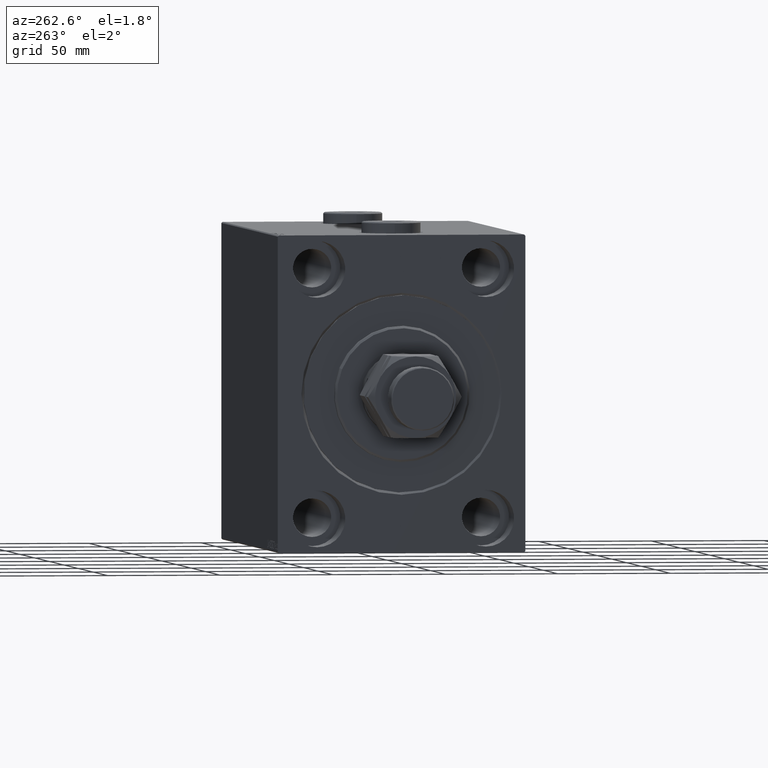
[diagram: clean part render]
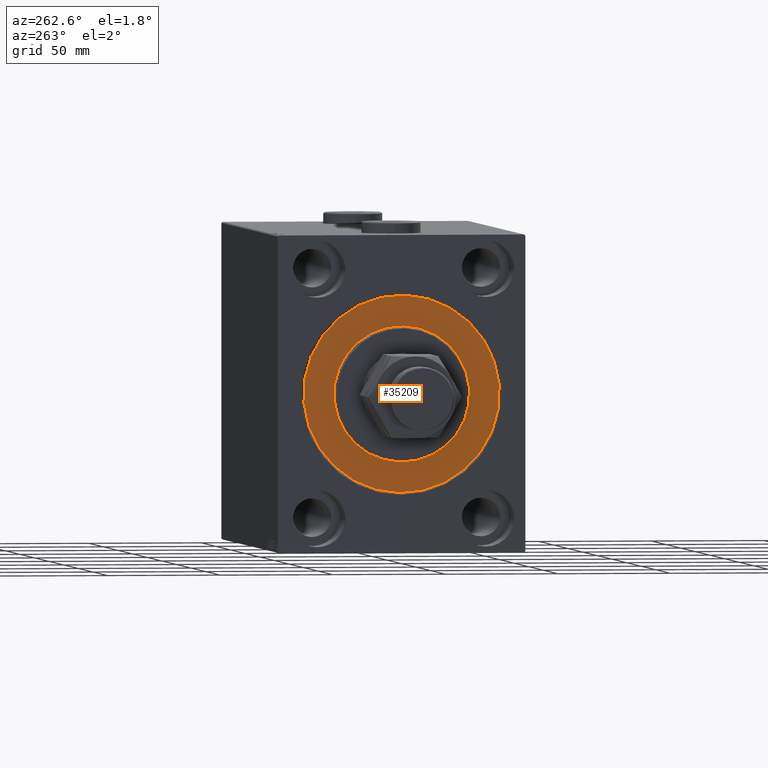
[diagram: same view with one face highlighted and labeled with its STEP entity id]
A machine part, auxiliary view. The second image highlights one B-rep face of the part: STEP entity #35209.
In plain terms, the highlighted planar face has unit normal (1, 0, -0).
Its self-contained STEP definition (entity closure, byte-faithful):
#263 = ORIENTED_EDGE ( 'NONE', *, *, #44765, .F. ) ;
#540 = EDGE_LOOP ( 'NONE', ( #1392, #21661 ) ) ;
#1392 = ORIENTED_EDGE ( 'NONE', *, *, #10688, .F. ) ;
#3582 = CIRCLE ( 'NONE', #32427, 30.00000000000000000 ) ;
#3672 = DIRECTION ( 'NONE',  ( -1.000000000000000000, 0.000000000000000000, 0.000000000000000000 ) ) ;
#3978 = CIRCLE ( 'NONE', #19918, 43.50000000000000000 ) ;
#4240 = VERTEX_POINT ( 'NONE', #46441 ) ;
#8518 = CIRCLE ( 'NONE', #12328, 43.50000000000000000 ) ;
#10059 = DIRECTION ( 'NONE',  ( 1.000000000000000000, -0.000000000000000000, 0.000000000000000000 ) ) ;
#10688 = EDGE_CURVE ( 'NONE', #18032, #12479, #8518, .T. ) ;
#12328 = AXIS2_PLACEMENT_3D ( 'NONE', #16749, #42433, #34812 ) ;
#12479 = VERTEX_POINT ( 'NONE', #12538 ) ;
#12538 = CARTESIAN_POINT ( 'NONE',  ( 0.000000000000000000, 5.327213576290986044E-15, 43.50000000000000000 ) ) ;
#13007 = DIRECTION ( 'NONE',  ( 0.000000000000000000, 0.000000000000000000, -1.000000000000000000 ) ) ;
#13276 = DIRECTION ( 'NONE',  ( -1.000000000000000000, 0.000000000000000000, 0.000000000000000000 ) ) ;
#13500 = CARTESIAN_POINT ( 'NONE',  ( 0.000000000000000000, 0.000000000000000000, 0.000000000000000000 ) ) ;
#14616 = FACE_BOUND ( 'NONE', #15900, .T. ) ;
#15900 = EDGE_LOOP ( 'NONE', ( #263, #23430 ) ) ;
#16749 = CARTESIAN_POINT ( 'NONE',  ( 0.000000000000000000, 0.000000000000000000, 0.000000000000000000 ) ) ;
#17527 = DIRECTION ( 'NONE',  ( 0.000000000000000000, 0.000000000000000000, 1.000000000000000000 ) ) ;
#17934 = DIRECTION ( 'NONE',  ( 0.000000000000000000, 0.000000000000000000, 1.000000000000000000 ) ) ;
#18032 = VERTEX_POINT ( 'NONE', #35352 ) ;
#19681 = AXIS2_PLACEMENT_3D ( 'NONE', #28407, #3672, #17934 ) ;
#19918 = AXIS2_PLACEMENT_3D ( 'NONE', #13500, #13276, #17527 ) ;
#21661 = ORIENTED_EDGE ( 'NONE', *, *, #44403, .F. ) ;
#23430 = ORIENTED_EDGE ( 'NONE', *, *, #25425, .F. ) ;
#25425 = EDGE_CURVE ( 'NONE', #4240, #37635, #3582, .T. ) ;
#25764 = FACE_OUTER_BOUND ( 'NONE', #540, .T. ) ;
#28407 = CARTESIAN_POINT ( 'NONE',  ( 0.000000000000000000, 0.000000000000000000, 0.000000000000000000 ) ) ;
#29840 = CIRCLE ( 'NONE', #34377, 30.00000000000000000 ) ;
#32427 = AXIS2_PLACEMENT_3D ( 'NONE', #46283, #39387, #13007 ) ;
#34377 = AXIS2_PLACEMENT_3D ( 'NONE', #42639, #10059, #46905 ) ;
#34812 = DIRECTION ( 'NONE',  ( 0.000000000000000000, 0.000000000000000000, 1.000000000000000000 ) ) ;
#35209 = ADVANCED_FACE ( 'NONE', ( #14616, #25764 ), #36257, .F. ) ;
#35352 = CARTESIAN_POINT ( 'NONE',  ( 0.000000000000000000, 0.000000000000000000, -43.50000000000000000 ) ) ;
#36257 = PLANE ( 'NONE',  #19681 ) ;
#37482 = CARTESIAN_POINT ( 'NONE',  ( 0.000000000000000000, 0.000000000000000000, 30.00000000000000000 ) ) ;
#37635 = VERTEX_POINT ( 'NONE', #37482 ) ;
#39387 = DIRECTION ( 'NONE',  ( 1.000000000000000000, -0.000000000000000000, 0.000000000000000000 ) ) ;
#42433 = DIRECTION ( 'NONE',  ( -1.000000000000000000, 0.000000000000000000, 0.000000000000000000 ) ) ;
#42639 = CARTESIAN_POINT ( 'NONE',  ( 0.000000000000000000, 0.000000000000000000, 0.000000000000000000 ) ) ;
#44403 = EDGE_CURVE ( 'NONE', #12479, #18032, #3978, .T. ) ;
#44765 = EDGE_CURVE ( 'NONE', #37635, #4240, #29840, .T. ) ;
#46283 = CARTESIAN_POINT ( 'NONE',  ( 0.000000000000000000, 0.000000000000000000, 0.000000000000000000 ) ) ;
#46441 = CARTESIAN_POINT ( 'NONE',  ( 0.000000000000000000, 3.673940397442059178E-15, -30.00000000000000000 ) ) ;
#46905 = DIRECTION ( 'NONE',  ( 0.000000000000000000, 0.000000000000000000, -1.000000000000000000 ) ) ;